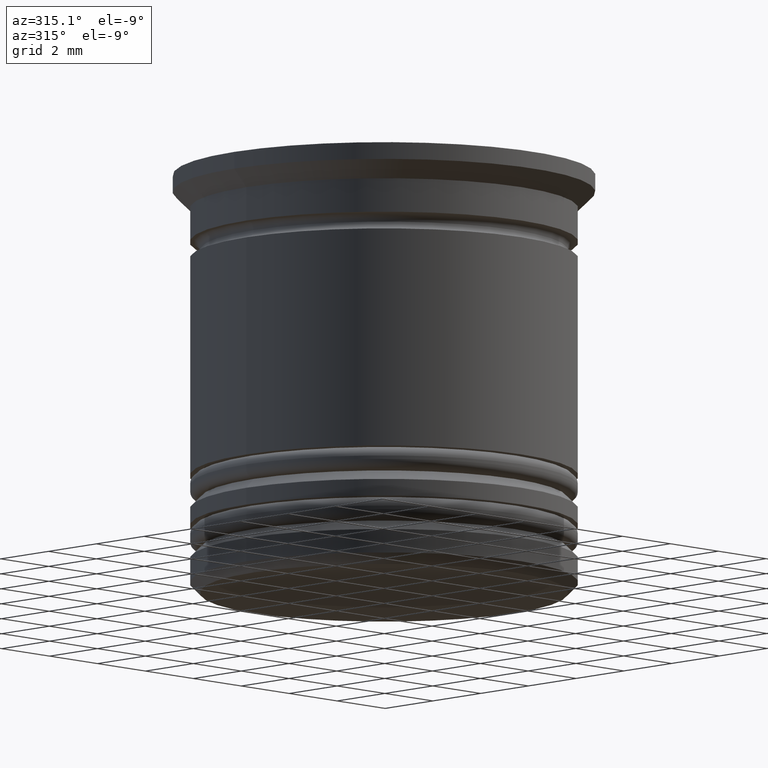
[diagram: clean part render]
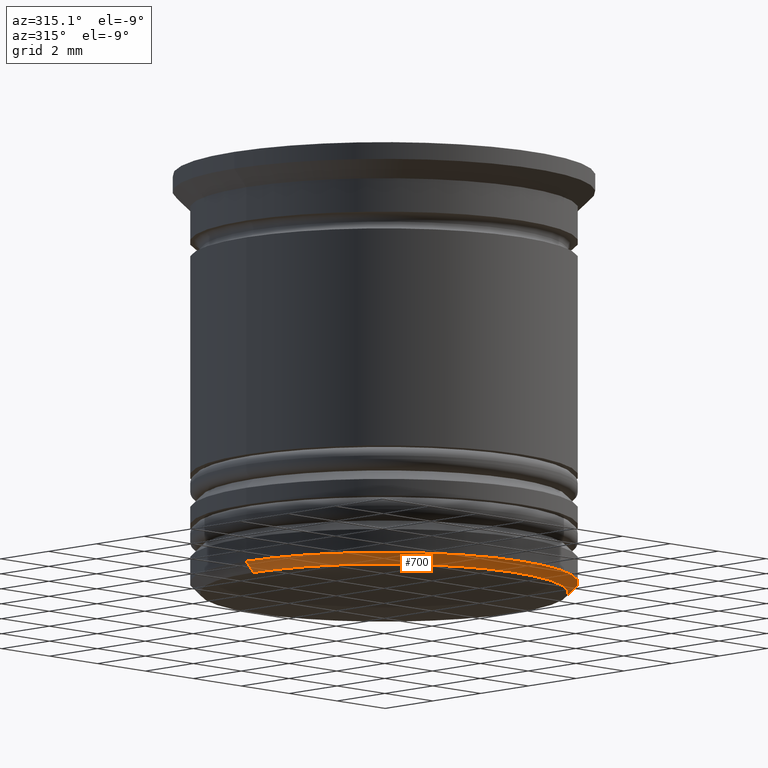
[diagram: same view with one face highlighted and labeled with its STEP entity id]
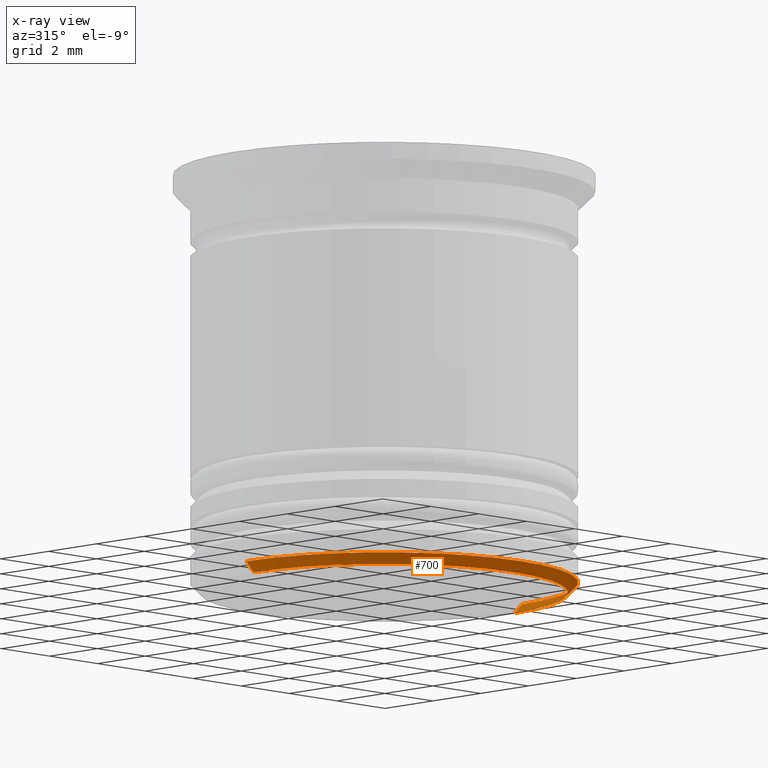
[diagram: x-ray of the same camera — body ghosted, the highlighted face saturated]
A machine part, auxiliary view. The second image highlights one B-rep face of the part: STEP entity #700.
The next image is the same camera in x-ray: the body ghosted, the highlighted face saturated — about 0% of this face is hidden behind the body in this view.
In plain terms, the highlighted conical surface has half-angle 45 deg.
Its self-contained STEP definition (entity closure, byte-faithful):
#6 = DIRECTION ( 'NONE',  ( -0.7071067811865526798, 8.659560562354995721E-17, 0.7071067811865424657 ) ) ;
#70 = DIRECTION ( 'NONE',  ( 0.000000000000000000, 0.000000000000000000, -1.000000000000000000 ) ) ;
#97 = ORIENTED_EDGE ( 'NONE', *, *, #1265, .F. ) ;
#132 = CIRCLE ( 'NONE', #969, 5.449999999999995737 ) ;
#146 = CARTESIAN_POINT ( 'NONE',  ( 0.000000000000000000, 0.000000000000000000, -12.19999999999999929 ) ) ;
#220 = CARTESIAN_POINT ( 'NONE',  ( 0.000000000000000000, 0.000000000000000000, -12.50000000000000000 ) ) ;
#315 = CARTESIAN_POINT ( 'NONE',  ( -5.750000000000001776, 7.041719095097282852E-16, -12.19999999999999929 ) ) ;
#338 = EDGE_CURVE ( 'NONE', #1968, #1369, #767, .T. ) ;
#389 = ORIENTED_EDGE ( 'NONE', *, *, #1151, .F. ) ;
#460 = DIRECTION ( 'NONE',  ( -0.000000000000000000, -0.000000000000000000, 1.000000000000000000 ) ) ;
#499 = CARTESIAN_POINT ( 'NONE',  ( 5.750000000000001776, 0.000000000000000000, -12.19999999999999929 ) ) ;
#517 = DIRECTION ( 'NONE',  ( -0.000000000000000000, -0.000000000000000000, 1.000000000000000000 ) ) ;
#573 = AXIS2_PLACEMENT_3D ( 'NONE', #1900, #517, #1139 ) ;
#585 = EDGE_LOOP ( 'NONE', ( #97, #389, #619, #1388 ) ) ;
#619 = ORIENTED_EDGE ( 'NONE', *, *, #1661, .T. ) ;
#700 = ADVANCED_FACE ( 'NONE', ( #923 ), #900, .T. ) ;
#735 = VERTEX_POINT ( 'NONE', #1463 ) ;
#767 = CIRCLE ( 'NONE', #573, 5.750000000000001776 ) ;
#803 = VECTOR ( 'NONE', #1686, 1000.000000000000000 ) ;
#900 = CONICAL_SURFACE ( 'NONE', #1457, 5.750000000000001776, 0.7853981633974554954 ) ;
#923 = FACE_OUTER_BOUND ( 'NONE', #585, .T. ) ;
#969 = AXIS2_PLACEMENT_3D ( 'NONE', #220, #70, #1462 ) ;
#1013 = VERTEX_POINT ( 'NONE', #1260 ) ;
#1043 = LINE ( 'NONE', #1822, #803 ) ;
#1102 = VECTOR ( 'NONE', #6, 1000.000000000000000 ) ;
#1139 = DIRECTION ( 'NONE',  ( -1.000000000000000000, 0.000000000000000000, 0.000000000000000000 ) ) ;
#1151 = EDGE_CURVE ( 'NONE', #1013, #735, #132, .T. ) ;
#1202 = CARTESIAN_POINT ( 'NONE',  ( -5.750000000000001776, 7.041719095097282852E-16, -12.19999999999999929 ) ) ;
#1237 = LINE ( 'NONE', #1202, #1102 ) ;
#1260 = CARTESIAN_POINT ( 'NONE',  ( 5.449999999999995737, 0.000000000000000000, -12.50000000000000000 ) ) ;
#1265 = EDGE_CURVE ( 'NONE', #735, #1968, #1237, .T. ) ;
#1369 = VERTEX_POINT ( 'NONE', #499 ) ;
#1388 = ORIENTED_EDGE ( 'NONE', *, *, #338, .F. ) ;
#1457 = AXIS2_PLACEMENT_3D ( 'NONE', #146, #460, #1541 ) ;
#1462 = DIRECTION ( 'NONE',  ( -1.000000000000000000, 0.000000000000000000, 0.000000000000000000 ) ) ;
#1463 = CARTESIAN_POINT ( 'NONE',  ( -5.449999999999995737, 6.858022075225175594E-16, -12.50000000000000000 ) ) ;
#1541 = DIRECTION ( 'NONE',  ( 1.000000000000000000, 0.000000000000000000, 0.000000000000000000 ) ) ;
#1661 = EDGE_CURVE ( 'NONE', #1013, #1369, #1043, .T. ) ;
#1686 = DIRECTION ( 'NONE',  ( 0.7071067811865526798, 0.000000000000000000, 0.7071067811865424657 ) ) ;
#1822 = CARTESIAN_POINT ( 'NONE',  ( 5.750000000000001776, 0.000000000000000000, -12.19999999999999929 ) ) ;
#1900 = CARTESIAN_POINT ( 'NONE',  ( 0.000000000000000000, 0.000000000000000000, -12.19999999999999929 ) ) ;
#1968 = VERTEX_POINT ( 'NONE', #315 ) ;